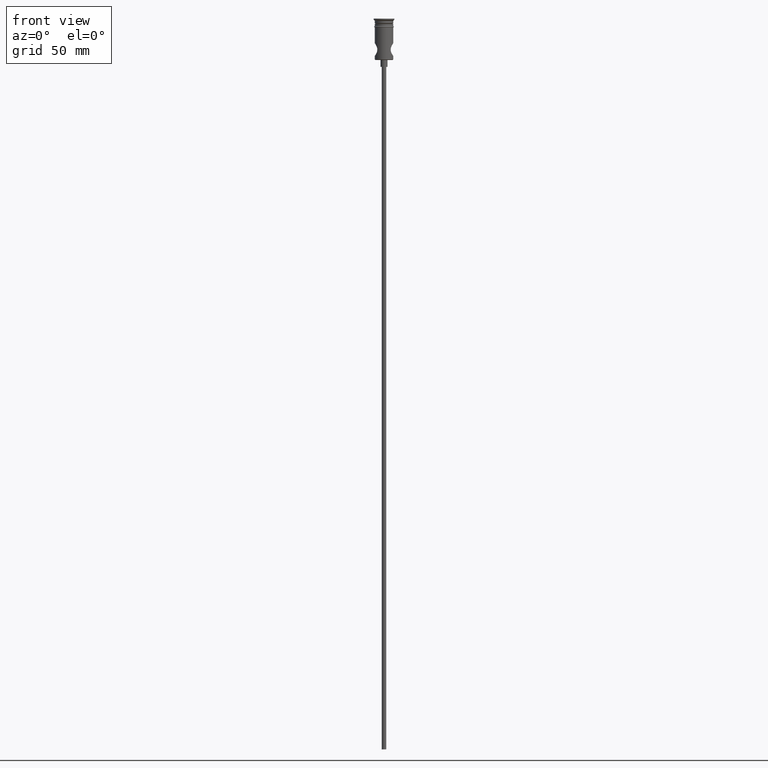
[diagram: clean part render]
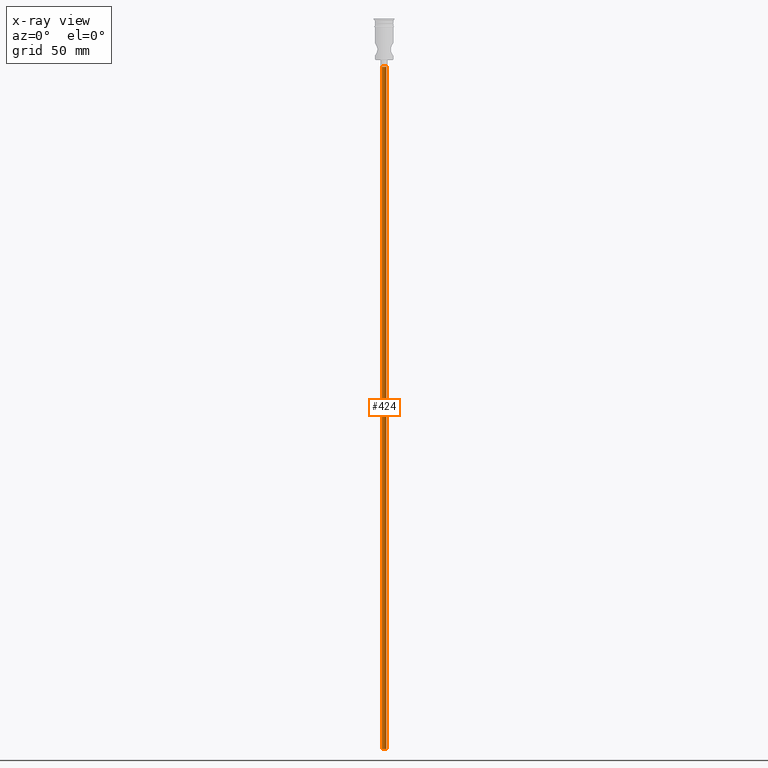
[diagram: x-ray — body ghosted, one internal face saturated and labeled with its STEP entity id]
A machine part, front view, then the same camera in x-ray: the body is ghosted and one INTERNAL B-rep face — a face not visible from any outside direction — is saturated and labeled: STEP entity #424.
In plain terms, the highlighted cylindrical surface (edge-blend (fillet) strip) has radius 1 mm, axis along (-0, -0, 1).
Its self-contained STEP definition (entity closure, byte-faithful):
#17 = CARTESIAN_POINT ( 'NONE',  ( -0.9999999999999997780, 1.224646799147352961E-16, -318.0000000000000000 ) ) ;
#52 = CARTESIAN_POINT ( 'NONE',  ( 0.000000000000000000, 0.000000000000000000, -20.99999999999999645 ) ) ;
#72 = CARTESIAN_POINT ( 'NONE',  ( -0.9999999999999997780, 1.224646799147352961E-16, -318.0000000000000000 ) ) ;
#154 = LINE ( 'NONE', #72, #885 ) ;
#157 = VERTEX_POINT ( 'NONE', #267 ) ;
#174 = CARTESIAN_POINT ( 'NONE',  ( 0.9999999999999997780, 0.000000000000000000, -318.0000000000000000 ) ) ;
#250 = ORIENTED_EDGE ( 'NONE', *, *, #917, .T. ) ;
#254 = AXIS2_PLACEMENT_3D ( 'NONE', #52, #1156, #599 ) ;
#256 = DIRECTION ( 'NONE',  ( -0.000000000000000000, -0.000000000000000000, 1.000000000000000000 ) ) ;
#267 = CARTESIAN_POINT ( 'NONE',  ( -0.9999999999999997780, 1.224646799147352961E-16, -20.99999999999999645 ) ) ;
#323 = EDGE_CURVE ( 'NONE', #706, #480, #657, .T. ) ;
#379 = CYLINDRICAL_SURFACE ( 'NONE', #905, 0.9999999999999997780 ) ;
#424 = ADVANCED_FACE ( 'NONE', ( #922 ), #379, .T. ) ;
#451 = ORIENTED_EDGE ( 'NONE', *, *, #1270, .F. ) ;
#454 = VECTOR ( 'NONE', #491, 1000.000000000000000 ) ;
#465 = EDGE_CURVE ( 'NONE', #706, #157, #154, .T. ) ;
#480 = VERTEX_POINT ( 'NONE', #594 ) ;
#491 = DIRECTION ( 'NONE',  ( -0.000000000000000000, -0.000000000000000000, 1.000000000000000000 ) ) ;
#495 = DIRECTION ( 'NONE',  ( -0.000000000000000000, -0.000000000000000000, 1.000000000000000000 ) ) ;
#513 = ORIENTED_EDGE ( 'NONE', *, *, #465, .T. ) ;
#594 = CARTESIAN_POINT ( 'NONE',  ( 0.9999999999999997780, 0.000000000000000000, -318.0000000000000000 ) ) ;
#599 = DIRECTION ( 'NONE',  ( -1.000000000000000000, 0.000000000000000000, 0.000000000000000000 ) ) ;
#648 = DIRECTION ( 'NONE',  ( -1.000000000000000000, 0.000000000000000000, 0.000000000000000000 ) ) ;
#657 = CIRCLE ( 'NONE', #771, 0.9999999999999997780 ) ;
#706 = VERTEX_POINT ( 'NONE', #17 ) ;
#771 = AXIS2_PLACEMENT_3D ( 'NONE', #1101, #1203, #648 ) ;
#775 = CIRCLE ( 'NONE', #254, 0.9999999999999997780 ) ;
#795 = DIRECTION ( 'NONE',  ( 1.000000000000000000, 0.000000000000000000, 0.000000000000000000 ) ) ;
#805 = LINE ( 'NONE', #174, #454 ) ;
#825 = CARTESIAN_POINT ( 'NONE',  ( 0.000000000000000000, 0.000000000000000000, -318.0000000000000000 ) ) ;
#885 = VECTOR ( 'NONE', #495, 1000.000000000000000 ) ;
#902 = CARTESIAN_POINT ( 'NONE',  ( 0.9999999999999997780, 0.000000000000000000, -20.99999999999999645 ) ) ;
#905 = AXIS2_PLACEMENT_3D ( 'NONE', #825, #256, #795 ) ;
#917 = EDGE_CURVE ( 'NONE', #157, #945, #775, .T. ) ;
#922 = FACE_OUTER_BOUND ( 'NONE', #1239, .T. ) ;
#945 = VERTEX_POINT ( 'NONE', #902 ) ;
#1101 = CARTESIAN_POINT ( 'NONE',  ( 0.000000000000000000, 0.000000000000000000, -318.0000000000000000 ) ) ;
#1156 = DIRECTION ( 'NONE',  ( 0.000000000000000000, 0.000000000000000000, -1.000000000000000000 ) ) ;
#1203 = DIRECTION ( 'NONE',  ( 0.000000000000000000, 0.000000000000000000, -1.000000000000000000 ) ) ;
#1239 = EDGE_LOOP ( 'NONE', ( #1291, #513, #250, #451 ) ) ;
#1270 = EDGE_CURVE ( 'NONE', #480, #945, #805, .T. ) ;
#1291 = ORIENTED_EDGE ( 'NONE', *, *, #323, .F. ) ;